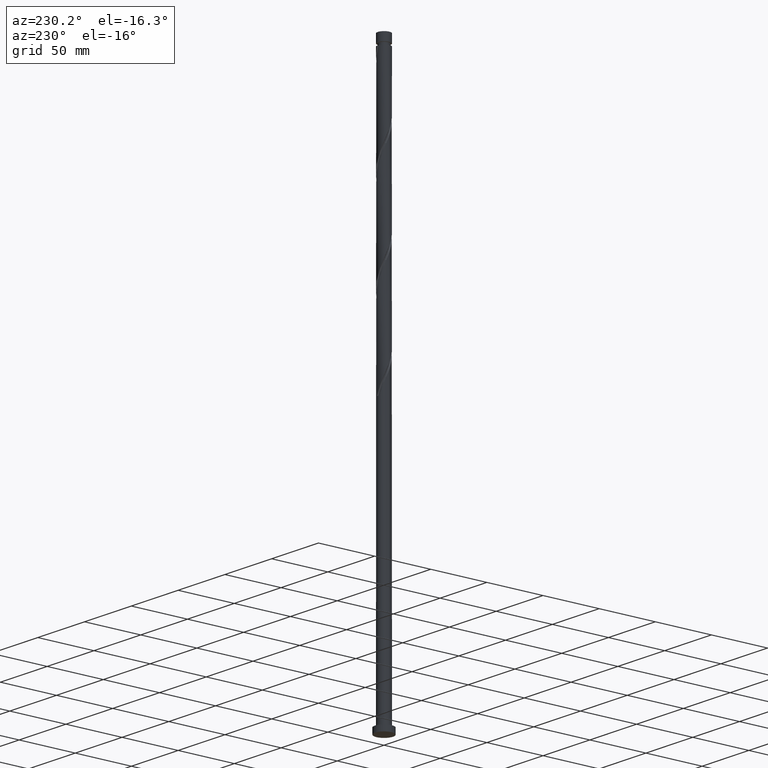
[diagram: clean part render]
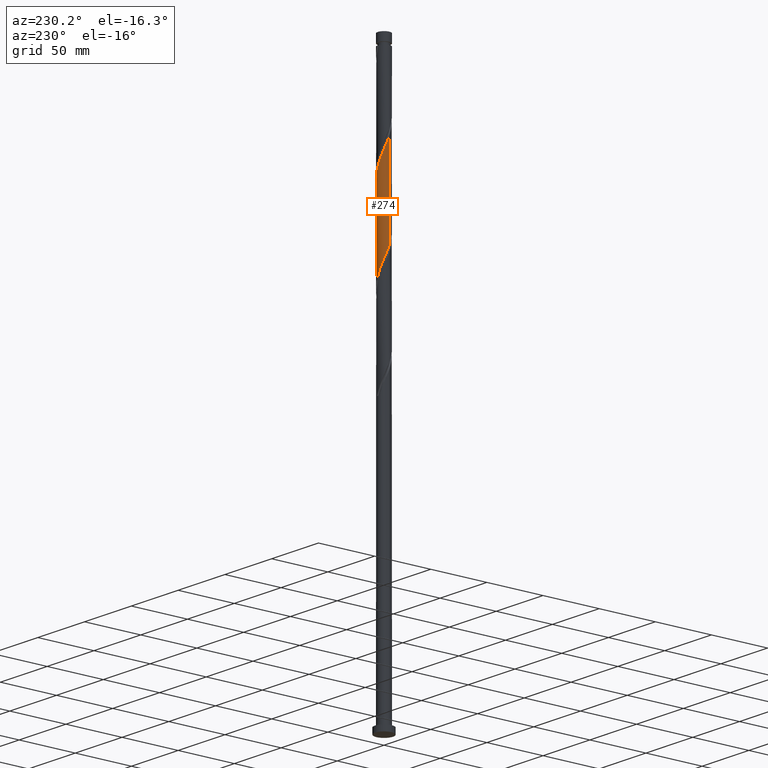
[diagram: same view with one face highlighted and labeled with its STEP entity id]
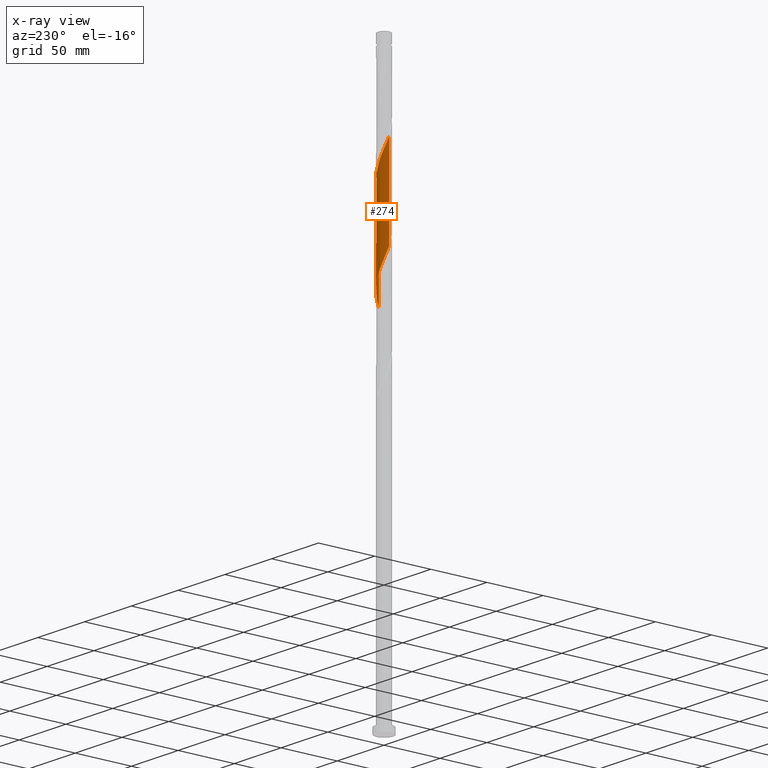
[diagram: x-ray of the same camera — body ghosted, the highlighted face saturated]
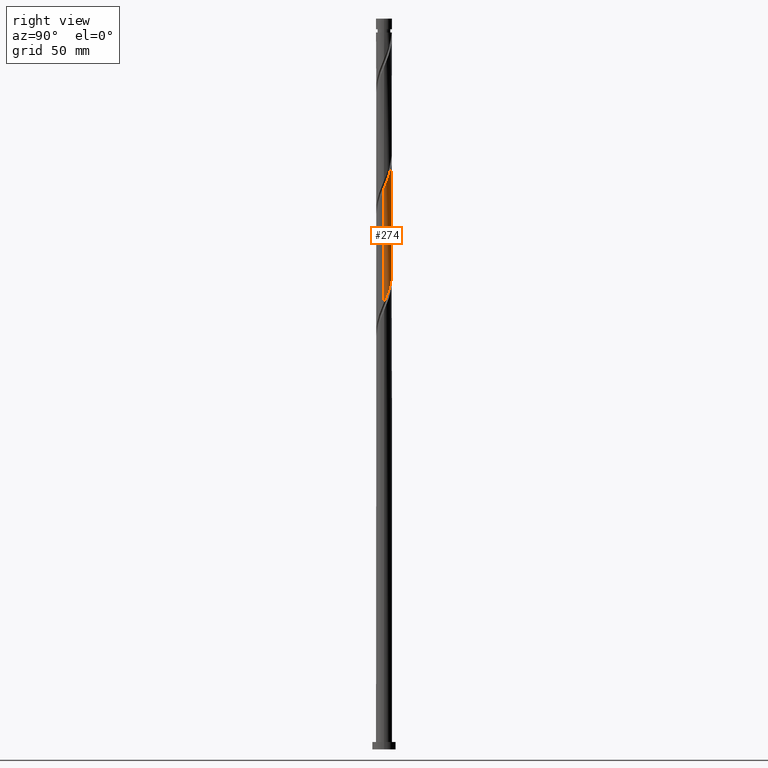
[diagram: same view with one face highlighted and labeled with its STEP entity id]
A machine part, auxiliary view. The second image highlights one B-rep face of the part: STEP entity #274.
The next image is the same camera in x-ray: the body ghosted, the highlighted face saturated — about 0% of this face is hidden behind the body in this view.
A second angle (right view) of the same face is appended — the face is thin or edge-on in the first view.
In plain terms, the highlighted cylindrical surface (edge-blend (fillet) strip) has radius 5.5 mm, axis along (-0, -0, -1).
Its self-contained STEP definition (entity closure, byte-faithful):
#39 = CARTESIAN_POINT ( 'NONE',  ( -5.500000000000000000, 0.000000000000000000, 500.0000000000000000 ) ) ;
#47 = CARTESIAN_POINT ( 'NONE',  ( -2.624630697922148759, 4.863615479734851199, 411.0871440127713186 ) ) ;
#71 = CARTESIAN_POINT ( 'NONE',  ( -4.884380654232723273, 2.585781788888784849, 418.8996440127713754 ) ) ;
#108 = EDGE_CURVE ( 'NONE', #1277, #1936, #1704, .T. ) ;
#114 = CARTESIAN_POINT ( 'NONE',  ( -5.072908999915564543, 2.124992771417274717, 342.0767273461047466 ) ) ;
#120 =( BOUNDED_CURVE ( )  B_SPLINE_CURVE ( 2, ( #482, #160, #1274, #1459, #2061, #1769, #114, #1933, #643, #1724, #961, #614, #335, #1261, #768, #138, #1409, #1127, #1898, #1759, #456, #2049, #603, #1249, #495, #1885, #2101, #1448, #1085, #1911, #1098, #1290, #1737, #656, #299 ),
 .UNSPECIFIED., .F., .T. ) 
 B_SPLINE_CURVE_WITH_KNOTS ( ( 3, 2, 2, 2, 2, 2, 2, 2, 2, 2, 2, 2, 2, 2, 2, 2, 2, 3 ),
 ( 0.6795286902180887045, 0.6796875000000000000, 0.6875000000000000000, 0.6953125000000000000, 0.7031250000000000000, 0.7109375000000000000, 0.7187500000000000000, 0.7265625000000000000, 0.7343750000000000000, 0.7421875000000000000, 0.7500000000000000000, 0.7578125000000000000, 0.7656250000000000000, 0.7734375000000000000, 0.7812500000000000000, 0.7890625000000000000, 0.7968750000000000000, 0.8045286902180873723 ),
 .UNSPECIFIED. ) 
 CURVE ( )  GEOMETRIC_REPRESENTATION_ITEM ( )  RATIONAL_B_SPLINE_CURVE ( ( 0.9089165573359502259, 0.9090019243628543189, 0.9090909090909452539, 0.9047133878838512500, 0.9090909090909452539, 0.9047133878838512500, 0.9090909090909452539, 0.9047133878838512500, 0.9090909090909452539, 0.9047133878838512500, 0.9090909090909452539, 0.9047133878838512500, 0.9090909090909452539, 0.9047133878838512500, 0.9090909090909452539, 0.9047133878838512500, 0.9090909090909452539, 0.9047133878838512500, 0.9090909090909452539, 0.9047133878838512500, 0.9090909090909452539, 0.9047133878838512500, 0.9090909090909452539, 0.9047133878838512500, 0.9090909090909452539, 0.9047133878838512500, 0.9090909090909452539, 0.9047133878838512500, 0.9090909090909452539, 0.9047133878838512500, 0.9090909090909452539, 0.9047133878838512500, 0.9090909090909452539, 0.9048023726119429622, 0.9089165573359487826 ) ) 
 REPRESENTATION_ITEM ( '' )  );
#132 = DIRECTION ( 'NONE',  ( -0.000000000000000000, -0.000000000000000000, -1.000000000000000000 ) ) ;
#138 = CARTESIAN_POINT ( 'NONE',  ( -1.583201322193242389, 5.294989651415503928, 330.3579773461047466 ) ) ;
#160 = CARTESIAN_POINT ( 'NONE',  ( -5.500000000000000000, 0.01095959355854085257, 347.3114041029173222 ) ) ;
#168 = DIRECTION ( 'NONE',  ( -0.000000000000000000, -0.000000000000000000, -1.000000000000000000 ) ) ;
#199 = CARTESIAN_POINT ( 'NONE',  ( 3.037386950224624904, 4.585224150966364043, 396.7642273461047466 ) ) ;
#208 = CARTESIAN_POINT ( 'NONE',  ( 1.051490319374299931, 5.398552408587157458, 401.9725606794381179 ) ) ;
#228 = CARTESIAN_POINT ( 'NONE',  ( -1.094486180817286547, 5.390000000000004121, 407.1808940127714322 ) ) ;
#262 = CARTESIAN_POINT ( 'NONE',  ( 0.000000000000000000, 0.000000000000000000, 500.0000000000000000 ) ) ;
#274 = ADVANCED_FACE ( 'NONE', ( #1210 ), #275, .T. ) ;
#275 = CYLINDRICAL_SURFACE ( 'NONE', #1972, 5.500000000000000000 ) ;
#299 = CARTESIAN_POINT ( 'NONE',  ( 5.500000000000000000, 3.802213082053248887E-15, 305.6710909907682208 ) ) ;
#335 = CARTESIAN_POINT ( 'NONE',  ( -3.037386950224621796, 4.585224150966358714, 334.2642273461048035 ) ) ;
#361 = CARTESIAN_POINT ( 'NONE',  ( 5.500000000000004441, 0.01095959355841491338, 383.7170505892915457 ) ) ;
#373 = CARTESIAN_POINT ( 'NONE',  ( 5.497797479903722362, 0.5636175167221727511, 385.0454773461045761 ) ) ;
#388 = CARTESIAN_POINT ( 'NONE',  ( 0.5197793165553485917, 5.502115165758805659, 403.2746440127713186 ) ) ;
#395 = CARTESIAN_POINT ( 'NONE',  ( -3.523043465120600182, 4.258122424034191056, 413.6913106794381179 ) ) ;
#451 = CARTESIAN_POINT ( 'NONE',  ( 5.500000000000003553, -6.743336730817932239E-15, 383.6906970347743595 ) ) ;
#456 = CARTESIAN_POINT ( 'NONE',  ( 1.094486180817288101, 5.389999999999999680, 323.8475606794381179 ) ) ;
#460 = ORIENTED_EDGE ( 'NONE', *, *, #587, .F. ) ;
#482 = CARTESIAN_POINT ( 'NONE',  ( -5.500000000000000000, 1.958139737257419718E-13, 347.3377576574344516 ) ) ;
#495 = CARTESIAN_POINT ( 'NONE',  ( 3.073837081521375580, 4.560868951884516243, 318.6392273461048035 ) ) ;
#507 = CARTESIAN_POINT ( 'NONE',  ( 5.500000000000000000, 3.802213082053248887E-15, 305.6710909907682208 ) ) ;
#538 = CARTESIAN_POINT ( 'NONE',  ( -4.286067647700003036, 3.488992111560462295, 416.2954773461046898 ) ) ;
#546 = CARTESIAN_POINT ( 'NONE',  ( -0.02191910008340933191, 5.499956322831262234, 404.5767273461046329 ) ) ;
#587 = EDGE_CURVE ( 'NONE', #2047, #1084, #120, .T. ) ;
#603 = CARTESIAN_POINT ( 'NONE',  ( 2.124992771417277382, 5.072908999915563655, 321.2433940127713186 ) ) ;
#614 = CARTESIAN_POINT ( 'NONE',  ( -3.488992111560458742, 4.286067647699998595, 335.5663106794381179 ) ) ;
#642 = ORIENTED_EDGE ( 'NONE', *, *, #1823, .T. ) ;
#643 = CARTESIAN_POINT ( 'NONE',  ( -4.560868951884518907, 3.073837081521372472, 339.4725606794381747 ) ) ;
#656 = CARTESIAN_POINT ( 'NONE',  ( 5.500000000000001776, 0.5306389821093834280, 306.9470710961841746 ) ) ;
#707 = CARTESIAN_POINT ( 'NONE',  ( -3.904555556410301609, 3.873557267797327786, 414.9933940127714322 ) ) ;
#724 = CARTESIAN_POINT ( 'NONE',  ( -5.089685152824117154, 2.084491555541015284, 420.2017273461046898 ) ) ;
#768 = CARTESIAN_POINT ( 'NONE',  ( -2.084491555541012175, 5.089685152824110936, 331.6600606794381179 ) ) ;
#845 = CARTESIAN_POINT ( 'NONE',  ( 1.583201322193246163, 5.294989651415510146, 400.6704773461047466 ) ) ;
#854 = CARTESIAN_POINT ( 'NONE',  ( -0.5636175167221723070, 5.497797479903722362, 405.8788106794380610 ) ) ;
#872 = CARTESIAN_POINT ( 'NONE',  ( -4.585224150966365819, 3.037386950224624904, 417.5975606794380610 ) ) ;
#915 = DIRECTION ( 'NONE',  ( -1.000000000000000000, 0.000000000000000000, 0.000000000000000000 ) ) ;
#960 = ORIENTED_EDGE ( 'NONE', *, *, #1189, .F. ) ;
#961 = CARTESIAN_POINT ( 'NONE',  ( -3.873557267797324233, 3.904555556410299388, 336.8683940127714322 ) ) ;
#1018 = CARTESIAN_POINT ( 'NONE',  ( 4.863615479734852087, 2.624630697922146982, 390.2538106794380610 ) ) ;
#1028 = CARTESIAN_POINT ( 'NONE',  ( -2.124992771417276494, 5.072908999915568984, 409.7850606794380610 ) ) ;
#1084 = VERTEX_POINT ( 'NONE', #507 ) ;
#1085 = CARTESIAN_POINT ( 'NONE',  ( 4.585224150966358714, 3.037386950224620463, 313.4308940127714322 ) ) ;
#1098 = CARTESIAN_POINT ( 'NONE',  ( 5.089685152824112713, 2.084491555541010843, 310.8267273461048035 ) ) ;
#1127 = CARTESIAN_POINT ( 'NONE',  ( -0.5197793165553465933, 5.502115165758800330, 327.7538106794381747 ) ) ;
#1176 = CARTESIAN_POINT ( 'NONE',  ( 2.585781788888787958, 4.884380654232723273, 398.0663106794380610 ) ) ;
#1182 = CARTESIAN_POINT ( 'NONE',  ( -5.500000000000005329, 0.5306389821094088521, 424.0813835960252618 ) ) ;
#1189 = EDGE_CURVE ( 'NONE', #1936, #2047, #2017, .T. ) ;
#1201 = CARTESIAN_POINT ( 'NONE',  ( -5.500000000000005329, -2.985855567377094265E-15, 425.3573637014411020 ) ) ;
#1210 = FACE_OUTER_BOUND ( 'NONE', #1915, .T. ) ;
#1249 = CARTESIAN_POINT ( 'NONE',  ( 2.624630697922147871, 4.863615479734846758, 319.9413106794381747 ) ) ;
#1261 = CARTESIAN_POINT ( 'NONE',  ( -2.585781788888782629, 4.884380654232720609, 332.9621440127714891 ) ) ;
#1274 = CARTESIAN_POINT ( 'NONE',  ( -5.499956322831258682, 0.02191910008341289504, 347.2850606794381179 ) ) ;
#1277 = VERTEX_POINT ( 'NONE', #451 ) ;
#1282 = VECTOR ( 'NONE', #168, 1000.000000000000000 ) ;
#1290 = CARTESIAN_POINT ( 'NONE',  ( 5.294989651415503928, 1.583201322193242166, 309.5246440127714322 ) ) ;
#1324 = CARTESIAN_POINT ( 'NONE',  ( 4.258122424034191056, 3.523043465120599294, 392.8579773461046898 ) ) ;
#1332 = CARTESIAN_POINT ( 'NONE',  ( 5.390000000000004121, 1.094486180817286769, 386.3475606794380610 ) ) ;
#1337 = CARTESIAN_POINT ( 'NONE',  ( -5.500000000000000000, 1.958139737257419718E-13, 347.3377576574343948 ) ) ;
#1342 = CARTESIAN_POINT ( 'NONE',  ( -3.073837081521374248, 4.560868951884520683, 412.3892273461046898 ) ) ;
#1352 = CARTESIAN_POINT ( 'NONE',  ( 4.560868951884520683, 3.073837081521375136, 391.5558940127714322 ) ) ;
#1361 = CARTESIAN_POINT ( 'NONE',  ( -5.294989651415510146, 1.583201322193245275, 421.5038106794380042 ) ) ;
#1399 = DIRECTION ( 'NONE',  ( -0.000000000000000000, -0.000000000000000000, -1.000000000000000000 ) ) ;
#1409 = CARTESIAN_POINT ( 'NONE',  ( -1.051490319374294602, 5.398552408587152129, 329.0558940127713754 ) ) ;
#1448 = CARTESIAN_POINT ( 'NONE',  ( 4.286067647700001260, 3.488992111560456078, 314.7329773461046898 ) ) ;
#1459 = CARTESIAN_POINT ( 'NONE',  ( -5.497797479903716145, 0.5636175167221716409, 345.9829773461046898 ) ) ;
#1492 = CARTESIAN_POINT ( 'NONE',  ( 5.072908999915568984, 2.124992771417276494, 388.9517273461047466 ) ) ;
#1502 = CARTESIAN_POINT ( 'NONE',  ( -1.625354844912402896, 5.282202520096286769, 408.4829773461046898 ) ) ;
#1518 = CARTESIAN_POINT ( 'NONE',  ( 5.500000000000003553, -6.743336730817932239E-15, 383.6906970347744164 ) ) ;
#1599 = CARTESIAN_POINT ( 'NONE',  ( 5.500000000000000000, 6.735557395310442023E-16, 500.0000000000000000 ) ) ;
#1651 = CARTESIAN_POINT ( 'NONE',  ( 5.282202520096287657, 1.625354844912400676, 387.6496440127714322 ) ) ;
#1661 = CARTESIAN_POINT ( 'NONE',  ( 3.488992111560461851, 4.286067647700003924, 395.4621440127713754 ) ) ;
#1666 = CARTESIAN_POINT ( 'NONE',  ( 5.499956322831262234, 0.02191910008340954355, 383.7433940127712617 ) ) ;
#1704 =( BOUNDED_CURVE ( )  B_SPLINE_CURVE ( 2, ( #1518, #361, #1666, #373, #1332, #1651, #1492, #1018, #1352, #1324, #1994, #1661, #199, #1176, #1834, #845, #208, #388, #546, #854, #228, #1502, #1028, #47, #1342, #395, #707, #538, #872, #71, #724, #1361, #2001, #1182, #1201 ),
 .UNSPECIFIED., .F., .T. ) 
 B_SPLINE_CURVE_WITH_KNOTS ( ( 3, 2, 2, 2, 2, 2, 2, 2, 2, 2, 2, 2, 2, 2, 2, 2, 2, 3 ),
 ( 0.4295286902180869282, 0.4296875000000000000, 0.4375000000000000000, 0.4453125000000000000, 0.4531250000000000000, 0.4609375000000000000, 0.4687500000000000000, 0.4765625000000000000, 0.4843750000000000000, 0.4921875000000000000, 0.5000000000000000000, 0.5078125000000000000, 0.5156250000000000000, 0.5234375000000000000, 0.5312500000000000000, 0.5390625000000000000, 0.5468750000000000000, 0.5545286902180870392 ),
 .UNSPECIFIED. ) 
 CURVE ( )  GEOMETRIC_REPRESENTATION_ITEM ( )  RATIONAL_B_SPLINE_CURVE ( ( 0.9089165573359530015, 0.9090019243628579826, 0.9090909090909499168, 0.9047133878838560239, 0.9090909090909499168, 0.9047133878838560239, 0.9090909090909499168, 0.9047133878838560239, 0.9090909090909499168, 0.9047133878838560239, 0.9090909090909499168, 0.9047133878838560239, 0.9090909090909499168, 0.9047133878838560239, 0.9090909090909499168, 0.9047133878838560239, 0.9090909090909499168, 0.9047133878838560239, 0.9090909090909499168, 0.9047133878838560239, 0.9090909090909499168, 0.9047133878838560239, 0.9090909090909499168, 0.9047133878838560239, 0.9090909090909499168, 0.9047133878838560239, 0.9090909090909499168, 0.9047133878838560239, 0.9090909090909499168, 0.9047133878838560239, 0.9090909090909499168, 0.9047133878838560239, 0.9090909090909499168, 0.9048023726119478471, 0.9089165573359532235 ) ) 
 REPRESENTATION_ITEM ( '' )  );
#1724 = CARTESIAN_POINT ( 'NONE',  ( -4.258122424034185727, 3.523043465120596629, 338.1704773461047466 ) ) ;
#1737 = CARTESIAN_POINT ( 'NONE',  ( 5.398552408587152129, 1.051490319374296156, 308.2225606794381747 ) ) ;
#1759 = CARTESIAN_POINT ( 'NONE',  ( 0.5636175167221718629, 5.497797479903716145, 325.1496440127714891 ) ) ;
#1769 = CARTESIAN_POINT ( 'NONE',  ( -5.282202520096279663, 1.625354844912402896, 343.3788106794381179 ) ) ;
#1775 = VECTOR ( 'NONE', #132, 1000.000000000000000 ) ;
#1823 = EDGE_CURVE ( 'NONE', #1277, #1084, #2098, .T. ) ;
#1834 = CARTESIAN_POINT ( 'NONE',  ( 2.084491555541014840, 5.089685152824117154, 399.3683940127714322 ) ) ;
#1885 = CARTESIAN_POINT ( 'NONE',  ( 3.523043465120597961, 4.258122424034184839, 317.3371440127713186 ) ) ;
#1898 = CARTESIAN_POINT ( 'NONE',  ( 0.02191910008341267993, 5.499956322831258682, 326.4517273461046898 ) ) ;
#1911 = CARTESIAN_POINT ( 'NONE',  ( 4.884380654232719721, 2.585781788888782629, 312.1288106794381179 ) ) ;
#1915 = EDGE_LOOP ( 'NONE', ( #1948, #642, #460, #960 ) ) ;
#1933 = CARTESIAN_POINT ( 'NONE',  ( -4.863615479734846758, 2.624630697922146982, 340.7746440127714322 ) ) ;
#1936 = VERTEX_POINT ( 'NONE', #2037 ) ;
#1948 = ORIENTED_EDGE ( 'NONE', *, *, #108, .F. ) ;
#1972 = AXIS2_PLACEMENT_3D ( 'NONE', #262, #1399, #915 ) ;
#1994 = CARTESIAN_POINT ( 'NONE',  ( 3.873557267797329562, 3.904555556410300721, 394.1600606794381179 ) ) ;
#2001 = CARTESIAN_POINT ( 'NONE',  ( -5.398552408587157458, 1.051490319374296600, 422.8058940127713754 ) ) ;
#2017 = LINE ( 'NONE', #39, #1775 ) ;
#2037 = CARTESIAN_POINT ( 'NONE',  ( -5.500000000000005329, -2.985855567377094265E-15, 425.3573637014411020 ) ) ;
#2047 = VERTEX_POINT ( 'NONE', #1337 ) ;
#2049 = CARTESIAN_POINT ( 'NONE',  ( 1.625354844912401564, 5.282202520096280551, 322.5454773461047466 ) ) ;
#2061 = CARTESIAN_POINT ( 'NONE',  ( -5.389999999999999680, 1.094486180817287435, 344.6808940127714891 ) ) ;
#2098 = LINE ( 'NONE', #1599, #1282 ) ;
#2101 = CARTESIAN_POINT ( 'NONE',  ( 3.904555556410298500, 3.873557267797324233, 316.0350606794380610 ) ) ;